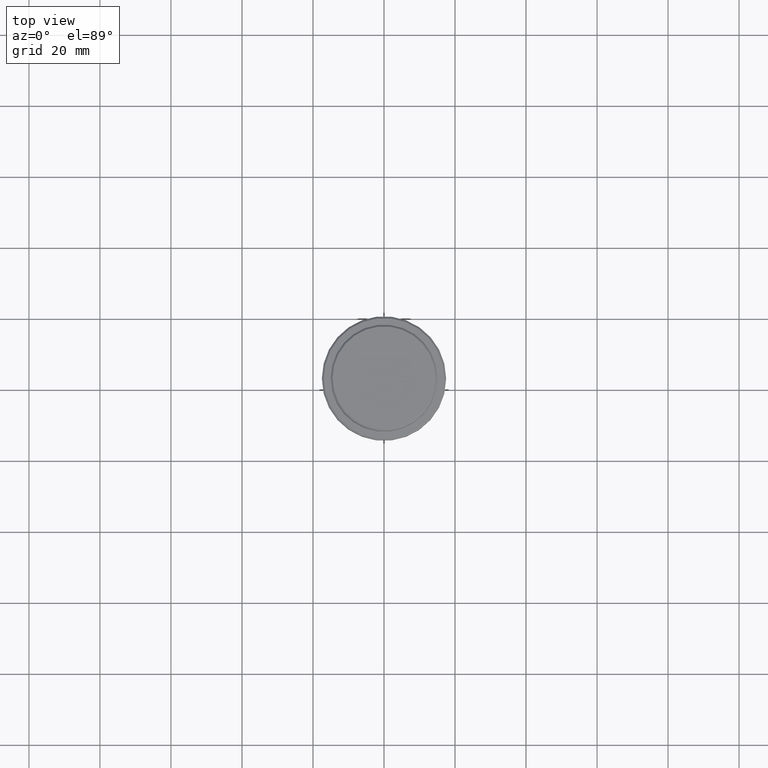
[diagram: clean part render]
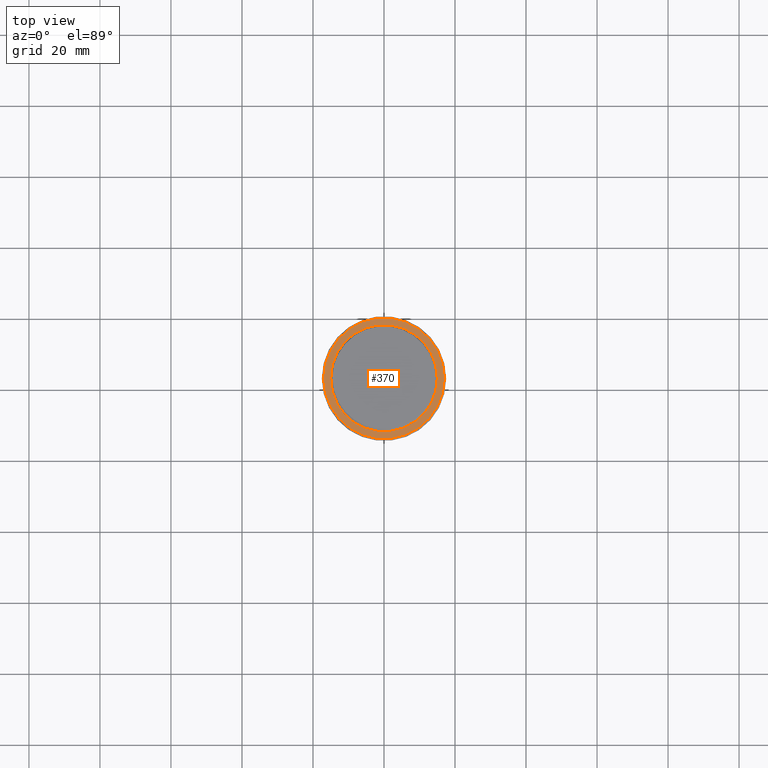
[diagram: same view with one face highlighted and labeled with its STEP entity id]
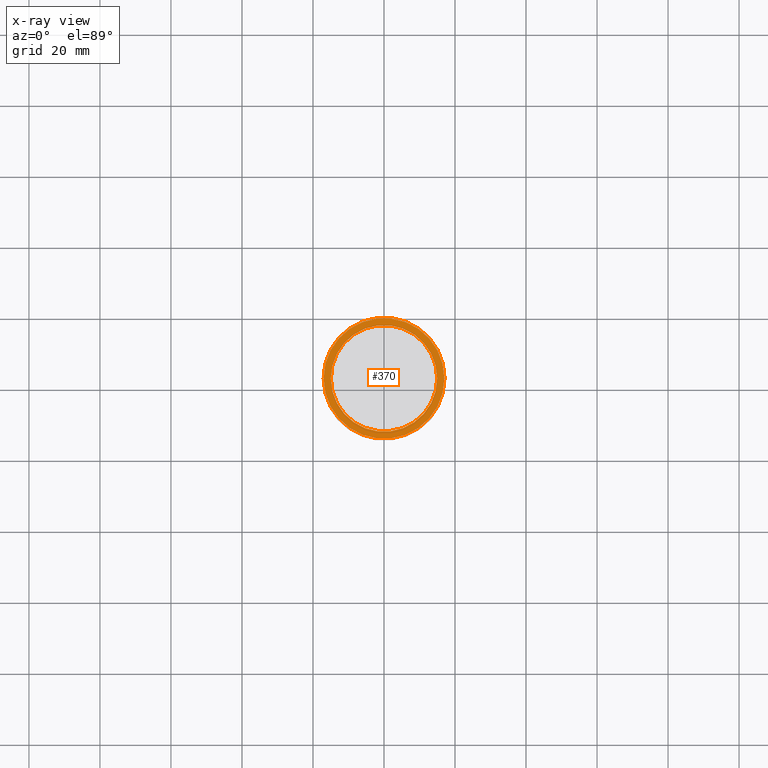
[diagram: x-ray of the same camera — body ghosted, the highlighted face saturated]
A machine part, top view. The second image highlights one B-rep face of the part: STEP entity #370.
The next image is the same camera in x-ray: the body ghosted, the highlighted face saturated — about 0% of this face is hidden behind the body in this view.
In plain terms, the highlighted planar face has unit normal (0, -0, 1).
Its self-contained STEP definition (entity closure, byte-faithful):
#4 = EDGE_CURVE ( 'NONE', #584, #358, #178, .T. ) ;
#47 = CARTESIAN_POINT ( 'NONE',  ( 14.99999999999999467, 0.000000000000000000, -9.000000000000001776 ) ) ;
#57 = DIRECTION ( 'NONE',  ( 1.000000000000000000, 0.000000000000000000, 0.000000000000000000 ) ) ;
#62 = DIRECTION ( 'NONE',  ( 0.000000000000000000, 0.000000000000000000, -1.000000000000000000 ) ) ;
#142 = CARTESIAN_POINT ( 'NONE',  ( 0.000000000000000000, 14.49999999999999467, -9.000000000000001776 ) ) ;
#178 = CIRCLE ( 'NONE', #1211, 16.99999999999998579 ) ;
#188 = CARTESIAN_POINT ( 'NONE',  ( 0.000000000000000000, 0.000000000000000000, -9.000000000000001776 ) ) ;
#207 = ORIENTED_EDGE ( 'NONE', *, *, #1393, .T. ) ;
#279 = DIRECTION ( 'NONE',  ( 1.000000000000000000, 0.000000000000000000, 0.000000000000000000 ) ) ;
#284 = EDGE_CURVE ( 'NONE', #942, #813, #1320, .T. ) ;
#355 = CARTESIAN_POINT ( 'NONE',  ( 16.99999999999998579, 2.112515728529183278E-15, -9.000000000000001776 ) ) ;
#358 = VERTEX_POINT ( 'NONE', #355 ) ;
#370 = ADVANCED_FACE ( 'NONE', ( #1246, #706 ), #1231, .T. ) ;
#486 = EDGE_LOOP ( 'NONE', ( #207, #995 ) ) ;
#507 = DIRECTION ( 'NONE',  ( 0.000000000000000000, 0.000000000000000000, -1.000000000000000000 ) ) ;
#522 = CIRCLE ( 'NONE', #658, 14.99999999999999467 ) ;
#524 = EDGE_LOOP ( 'NONE', ( #645, #1198 ) ) ;
#576 = DIRECTION ( 'NONE',  ( 1.000000000000000000, 0.000000000000000000, 0.000000000000000000 ) ) ;
#584 = VERTEX_POINT ( 'NONE', #1296 ) ;
#645 = ORIENTED_EDGE ( 'NONE', *, *, #4, .T. ) ;
#658 = AXIS2_PLACEMENT_3D ( 'NONE', #1043, #507, #1165 ) ;
#705 = AXIS2_PLACEMENT_3D ( 'NONE', #1024, #62, #279 ) ;
#706 = FACE_BOUND ( 'NONE', #486, .T. ) ;
#711 = DIRECTION ( 'NONE',  ( -0.000000000000000000, -0.000000000000000000, 1.000000000000000000 ) ) ;
#751 = AXIS2_PLACEMENT_3D ( 'NONE', #142, #1149, #57 ) ;
#813 = VERTEX_POINT ( 'NONE', #47 ) ;
#837 = CARTESIAN_POINT ( 'NONE',  ( -14.99999999999999467, 1.836970198721029194E-15, -9.000000000000001776 ) ) ;
#903 = DIRECTION ( 'NONE',  ( -0.000000000000000000, -0.000000000000000000, 1.000000000000000000 ) ) ;
#942 = VERTEX_POINT ( 'NONE', #837 ) ;
#995 = ORIENTED_EDGE ( 'NONE', *, *, #284, .T. ) ;
#1024 = CARTESIAN_POINT ( 'NONE',  ( 0.000000000000000000, 0.000000000000000000, -9.000000000000001776 ) ) ;
#1043 = CARTESIAN_POINT ( 'NONE',  ( 0.000000000000000000, 0.000000000000000000, -9.000000000000001776 ) ) ;
#1064 = DIRECTION ( 'NONE',  ( 1.000000000000000000, 0.000000000000000000, 0.000000000000000000 ) ) ;
#1149 = DIRECTION ( 'NONE',  ( 0.000000000000000000, -0.000000000000000000, 1.000000000000000000 ) ) ;
#1165 = DIRECTION ( 'NONE',  ( 1.000000000000000000, 0.000000000000000000, 0.000000000000000000 ) ) ;
#1198 = ORIENTED_EDGE ( 'NONE', *, *, #1287, .T. ) ;
#1211 = AXIS2_PLACEMENT_3D ( 'NONE', #188, #711, #1064 ) ;
#1231 = PLANE ( 'NONE',  #751 ) ;
#1246 = FACE_OUTER_BOUND ( 'NONE', #524, .T. ) ;
#1287 = EDGE_CURVE ( 'NONE', #358, #584, #1322, .T. ) ;
#1296 = CARTESIAN_POINT ( 'NONE',  ( -16.99999999999998579, 0.000000000000000000, -9.000000000000001776 ) ) ;
#1320 = CIRCLE ( 'NONE', #705, 14.99999999999999467 ) ;
#1322 = CIRCLE ( 'NONE', #1415, 16.99999999999998579 ) ;
#1356 = CARTESIAN_POINT ( 'NONE',  ( 0.000000000000000000, 0.000000000000000000, -9.000000000000001776 ) ) ;
#1393 = EDGE_CURVE ( 'NONE', #813, #942, #522, .T. ) ;
#1415 = AXIS2_PLACEMENT_3D ( 'NONE', #1356, #903, #576 ) ;